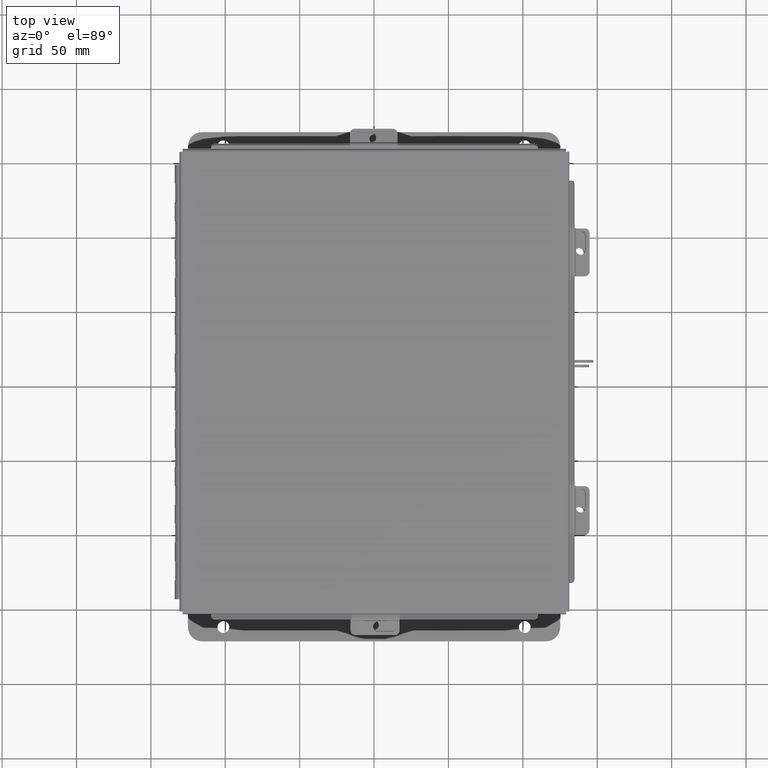
[diagram: clean part render]
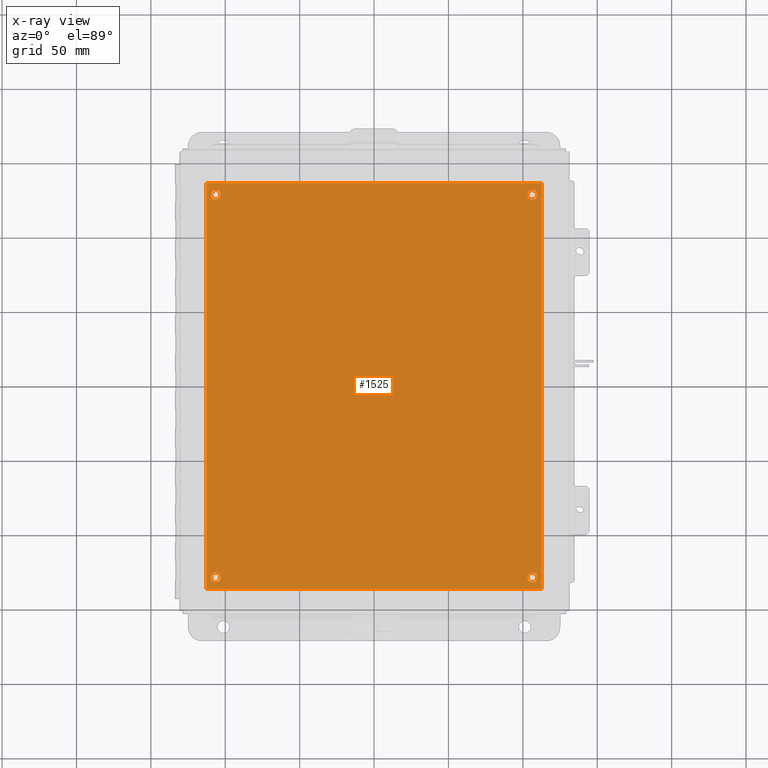
[diagram: x-ray — body ghosted, one internal face saturated and labeled with its STEP entity id]
A machine part, top view, then the same camera in x-ray: the body is ghosted and one INTERNAL B-rep face — a face not visible from any outside direction — is saturated and labeled: STEP entity #1525.
In plain terms, the highlighted planar face has unit normal (0, 0, -1).
Its self-contained STEP definition (entity closure, byte-faithful):
#238 = EDGE_CURVE ( 'NONE', #17418, #5348, #16650, .T. ) ;
#393 = AXIS2_PLACEMENT_3D ( 'NONE', #9643, #1465, #11009 ) ;
#683 = DIRECTION ( 'NONE',  ( -0.0000000000000000000, -0.0000000000000000000, 1.000000000000000000 ) ) ;
#816 = FACE_BOUND ( 'NONE', #9400, .T. ) ;
#911 = EDGE_LOOP ( 'NONE', ( #8280, #3114 ) ) ;
#1068 = ORIENTED_EDGE ( 'NONE', *, *, #2368, .T. ) ;
#1271 = DIRECTION ( 'NONE',  ( -0.0000000000000000000, -0.0000000000000000000, 1.000000000000000000 ) ) ;
#1465 = DIRECTION ( 'NONE',  ( -0.0000000000000000000, -0.0000000000000000000, 1.000000000000000000 ) ) ;
#1525 = ADVANCED_FACE ( 'NONE', ( #16821, #13204, #4472, #816, #14905 ), #6889, .T. ) ;
#1577 = EDGE_CURVE ( 'NONE', #5348, #1917, #6818, .T. ) ;
#1700 = DIRECTION ( 'NONE',  ( -1.000000000000000000, 0.0000000000000000000, 0.0000000000000000000 ) ) ;
#1917 = VERTEX_POINT ( 'NONE', #15208 ) ;
#2040 = CARTESIAN_POINT ( 'NONE',  ( 8.750000000000000000, 10.43799999999999900, -0.07470000000000003000 ) ) ;
#2180 = VERTEX_POINT ( 'NONE', #8508 ) ;
#2233 = VERTEX_POINT ( 'NONE', #16891 ) ;
#2368 = EDGE_CURVE ( 'NONE', #11000, #15966, #14061, .T. ) ;
#2560 = AXIS2_PLACEMENT_3D ( 'NONE', #15413, #7261, #16786 ) ;
#2634 = CARTESIAN_POINT ( 'NONE',  ( 0.1249999999999997900, 10.43799999999999900, -0.07470000000000003000 ) ) ;
#2640 = CARTESIAN_POINT ( 'NONE',  ( 0.0000000000000000000, 0.0000000000000000000, -0.07470000000000003000 ) ) ;
#2655 = EDGE_CURVE ( 'NONE', #11760, #17418, #9791, .T. ) ;
#2991 = CARTESIAN_POINT ( 'NONE',  ( 8.875000000000000000, 0.0000000000000000000, -0.07470000000000003000 ) ) ;
#3114 = ORIENTED_EDGE ( 'NONE', *, *, #4293, .T. ) ;
#3187 = VECTOR ( 'NONE', #9392, 39.37007874015748100 ) ;
#3354 = VERTEX_POINT ( 'NONE', #16944 ) ;
#3456 = CARTESIAN_POINT ( 'NONE',  ( 8.500000000000001800, 0.3120000000000036600, -0.07470000000000003000 ) ) ;
#3944 = CIRCLE ( 'NONE', #11932, 0.1250000000000004400 ) ;
#4293 = EDGE_CURVE ( 'NONE', #15491, #10185, #3944, .T. ) ;
#4414 = VECTOR ( 'NONE', #15140, 39.37007874015748100 ) ;
#4472 = FACE_BOUND ( 'NONE', #9049, .T. ) ;
#4530 = EDGE_CURVE ( 'NONE', #10185, #15491, #11444, .T. ) ;
#4659 = AXIS2_PLACEMENT_3D ( 'NONE', #8964, #12310, #6599 ) ;
#4786 = CIRCLE ( 'NONE', #12677, 0.1250000000000000600 ) ;
#4860 = LINE ( 'NONE', #15066, #4414 ) ;
#5127 = AXIS2_PLACEMENT_3D ( 'NONE', #9431, #11570, #1700 ) ;
#5348 = VERTEX_POINT ( 'NONE', #2991 ) ;
#6333 = AXIS2_PLACEMENT_3D ( 'NONE', #10443, #10320, #16002 ) ;
#6599 = DIRECTION ( 'NONE',  ( -1.000000000000000000, 0.0000000000000000000, -0.0000000000000000000 ) ) ;
#6671 = EDGE_CURVE ( 'NONE', #2180, #6741, #14610, .T. ) ;
#6741 = VERTEX_POINT ( 'NONE', #2634 ) ;
#6818 = LINE ( 'NONE', #15092, #3187 ) ;
#6879 = DIRECTION ( 'NONE',  ( -0.0000000000000000000, -0.0000000000000000000, 1.000000000000000000 ) ) ;
#6889 = PLANE ( 'NONE',  #4659 ) ;
#7190 = CARTESIAN_POINT ( 'NONE',  ( 8.500000000000000000, 10.43799999999999900, -0.07470000000000003000 ) ) ;
#7261 = DIRECTION ( 'NONE',  ( -0.0000000000000000000, -0.0000000000000000000, 1.000000000000000000 ) ) ;
#7357 = EDGE_CURVE ( 'NONE', #2233, #3354, #4786, .T. ) ;
#7383 = EDGE_CURVE ( 'NONE', #3354, #2233, #11623, .T. ) ;
#7473 = EDGE_LOOP ( 'NONE', ( #11143, #16150, #11915, #16814 ) ) ;
#8167 = DIRECTION ( 'NONE',  ( -0.0000000000000000000, -0.0000000000000000000, 1.000000000000000000 ) ) ;
#8280 = ORIENTED_EDGE ( 'NONE', *, *, #4530, .T. ) ;
#8492 = ORIENTED_EDGE ( 'NONE', *, *, #6671, .T. ) ;
#8508 = CARTESIAN_POINT ( 'NONE',  ( 0.3749999999999998300, 10.43799999999999900, -0.07470000000000003000 ) ) ;
#8527 = VECTOR ( 'NONE', #10840, 39.37007874015748100 ) ;
#8934 = VECTOR ( 'NONE', #15750, 39.37007874015748100 ) ;
#8964 = CARTESIAN_POINT ( 'NONE',  ( 0.0000000000000000000, 0.0000000000000000000, -0.07470000000000003000 ) ) ;
#9049 = EDGE_LOOP ( 'NONE', ( #10318, #1068 ) ) ;
#9392 = DIRECTION ( 'NONE',  ( 0.0000000000000000000, 1.000000000000000000, 0.0000000000000000000 ) ) ;
#9400 = EDGE_LOOP ( 'NONE', ( #8492, #13600 ) ) ;
#9431 = CARTESIAN_POINT ( 'NONE',  ( 0.2499999999999998100, 10.43799999999999900, -0.07470000000000003000 ) ) ;
#9643 = CARTESIAN_POINT ( 'NONE',  ( 0.2500000000000020000, 0.3120000000000015000, -0.07470000000000003000 ) ) ;
#9791 = LINE ( 'NONE', #12535, #8934 ) ;
#10185 = VERTEX_POINT ( 'NONE', #13244 ) ;
#10318 = ORIENTED_EDGE ( 'NONE', *, *, #14584, .T. ) ;
#10320 = DIRECTION ( 'NONE',  ( -0.0000000000000000000, -0.0000000000000000000, 1.000000000000000000 ) ) ;
#10443 = CARTESIAN_POINT ( 'NONE',  ( 8.625000000000001800, 0.3120000000000036600, -0.07470000000000003000 ) ) ;
#10561 = EDGE_LOOP ( 'NONE', ( #11062, #12346 ) ) ;
#10840 = DIRECTION ( 'NONE',  ( 1.000000000000000000, 0.0000000000000000000, 0.0000000000000000000 ) ) ;
#11000 = VERTEX_POINT ( 'NONE', #7190 ) ;
#11009 = DIRECTION ( 'NONE',  ( -1.000000000000000000, 0.0000000000000000000, 0.0000000000000000000 ) ) ;
#11062 = ORIENTED_EDGE ( 'NONE', *, *, #7357, .T. ) ;
#11143 = ORIENTED_EDGE ( 'NONE', *, *, #2655, .F. ) ;
#11444 = CIRCLE ( 'NONE', #6333, 0.1250000000000004400 ) ;
#11570 = DIRECTION ( 'NONE',  ( -0.0000000000000000000, -0.0000000000000000000, 1.000000000000000000 ) ) ;
#11623 = CIRCLE ( 'NONE', #393, 0.1250000000000000600 ) ;
#11760 = VERTEX_POINT ( 'NONE', #12802 ) ;
#11915 = ORIENTED_EDGE ( 'NONE', *, *, #1577, .F. ) ;
#11932 = AXIS2_PLACEMENT_3D ( 'NONE', #15633, #683, #15765 ) ;
#12310 = DIRECTION ( 'NONE',  ( 0.0000000000000000000, 0.0000000000000000000, -1.000000000000000000 ) ) ;
#12346 = ORIENTED_EDGE ( 'NONE', *, *, #7383, .T. ) ;
#12535 = CARTESIAN_POINT ( 'NONE',  ( 0.0000000000000000000, 0.0000000000000000000, -0.07470000000000003000 ) ) ;
#12677 = AXIS2_PLACEMENT_3D ( 'NONE', #16356, #8167, #17730 ) ;
#12802 = CARTESIAN_POINT ( 'NONE',  ( 0.0000000000000000000, 10.75000000000000200, -0.07470000000000003000 ) ) ;
#12927 = CIRCLE ( 'NONE', #13236, 0.1250000000000000000 ) ;
#13204 = FACE_BOUND ( 'NONE', #911, .T. ) ;
#13236 = AXIS2_PLACEMENT_3D ( 'NONE', #14997, #6879, #16420 ) ;
#13244 = CARTESIAN_POINT ( 'NONE',  ( 8.750000000000001800, 0.3120000000000036600, -0.07470000000000003000 ) ) ;
#13371 = CIRCLE ( 'NONE', #2560, 0.1250000000000004400 ) ;
#13600 = ORIENTED_EDGE ( 'NONE', *, *, #15117, .T. ) ;
#13627 = EDGE_CURVE ( 'NONE', #1917, #11760, #4860, .T. ) ;
#13821 = AXIS2_PLACEMENT_3D ( 'NONE', #15667, #1271, #16279 ) ;
#14061 = CIRCLE ( 'NONE', #13821, 0.1250000000000004400 ) ;
#14584 = EDGE_CURVE ( 'NONE', #15966, #11000, #13371, .T. ) ;
#14610 = CIRCLE ( 'NONE', #5127, 0.1250000000000000000 ) ;
#14905 = FACE_OUTER_BOUND ( 'NONE', #7473, .T. ) ;
#14997 = CARTESIAN_POINT ( 'NONE',  ( 0.2499999999999998100, 10.43799999999999900, -0.07470000000000003000 ) ) ;
#15066 = CARTESIAN_POINT ( 'NONE',  ( 0.0000000000000000000, 10.75000000000000200, -0.07470000000000003000 ) ) ;
#15092 = CARTESIAN_POINT ( 'NONE',  ( 8.875000000000000000, 0.0000000000000000000, -0.07470000000000003000 ) ) ;
#15117 = EDGE_CURVE ( 'NONE', #6741, #2180, #12927, .T. ) ;
#15140 = DIRECTION ( 'NONE',  ( -1.000000000000000000, -0.0000000000000000000, -0.0000000000000000000 ) ) ;
#15208 = CARTESIAN_POINT ( 'NONE',  ( 8.875000000000000000, 10.75000000000000200, -0.07470000000000003000 ) ) ;
#15413 = CARTESIAN_POINT ( 'NONE',  ( 8.625000000000000000, 10.43799999999999900, -0.07470000000000003000 ) ) ;
#15491 = VERTEX_POINT ( 'NONE', #3456 ) ;
#15633 = CARTESIAN_POINT ( 'NONE',  ( 8.625000000000001800, 0.3120000000000036600, -0.07470000000000003000 ) ) ;
#15667 = CARTESIAN_POINT ( 'NONE',  ( 8.625000000000000000, 10.43799999999999900, -0.07470000000000003000 ) ) ;
#15750 = DIRECTION ( 'NONE',  ( -0.0000000000000000000, -1.000000000000000000, -0.0000000000000000000 ) ) ;
#15765 = DIRECTION ( 'NONE',  ( -1.000000000000000000, 0.0000000000000000000, 0.0000000000000000000 ) ) ;
#15966 = VERTEX_POINT ( 'NONE', #2040 ) ;
#16002 = DIRECTION ( 'NONE',  ( -1.000000000000000000, 0.0000000000000000000, 0.0000000000000000000 ) ) ;
#16150 = ORIENTED_EDGE ( 'NONE', *, *, #13627, .F. ) ;
#16279 = DIRECTION ( 'NONE',  ( -1.000000000000000000, 0.0000000000000000000, 0.0000000000000000000 ) ) ;
#16356 = CARTESIAN_POINT ( 'NONE',  ( 0.2500000000000020000, 0.3120000000000015000, -0.07470000000000003000 ) ) ;
#16420 = DIRECTION ( 'NONE',  ( -1.000000000000000000, 0.0000000000000000000, 0.0000000000000000000 ) ) ;
#16650 = LINE ( 'NONE', #2640, #8527 ) ;
#16786 = DIRECTION ( 'NONE',  ( -1.000000000000000000, 0.0000000000000000000, 0.0000000000000000000 ) ) ;
#16814 = ORIENTED_EDGE ( 'NONE', *, *, #238, .F. ) ;
#16821 = FACE_BOUND ( 'NONE', #10561, .T. ) ;
#16891 = CARTESIAN_POINT ( 'NONE',  ( 0.3750000000000020000, 0.3120000000000015000, -0.07470000000000003000 ) ) ;
#16944 = CARTESIAN_POINT ( 'NONE',  ( 0.1250000000000019200, 0.3120000000000015000, -0.07470000000000003000 ) ) ;
#17033 = CARTESIAN_POINT ( 'NONE',  ( 0.0000000000000000000, 0.0000000000000000000, -0.07470000000000003000 ) ) ;
#17418 = VERTEX_POINT ( 'NONE', #17033 ) ;
#17730 = DIRECTION ( 'NONE',  ( -1.000000000000000000, 0.0000000000000000000, 0.0000000000000000000 ) ) ;